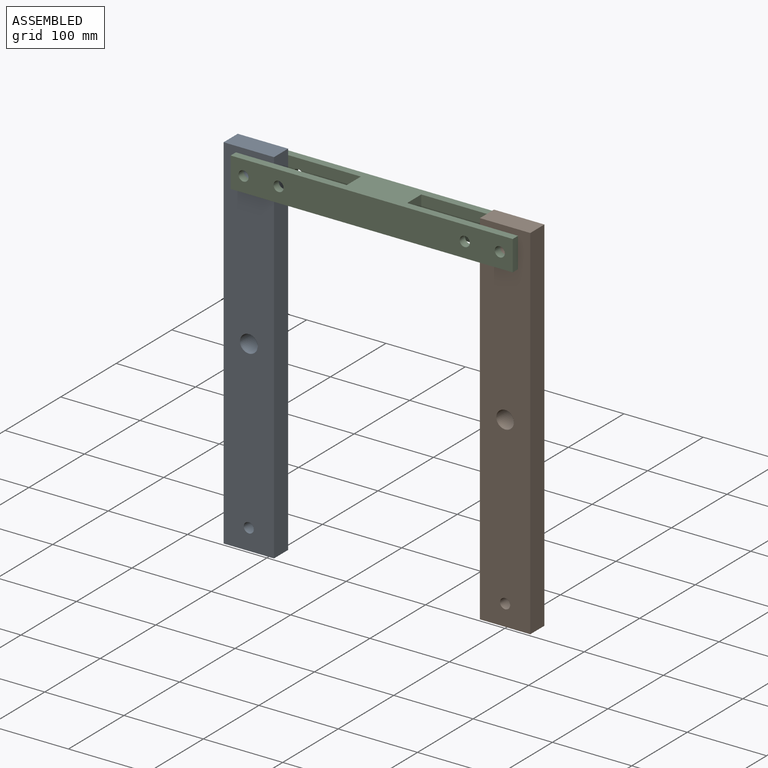
[diagram: assembled view]
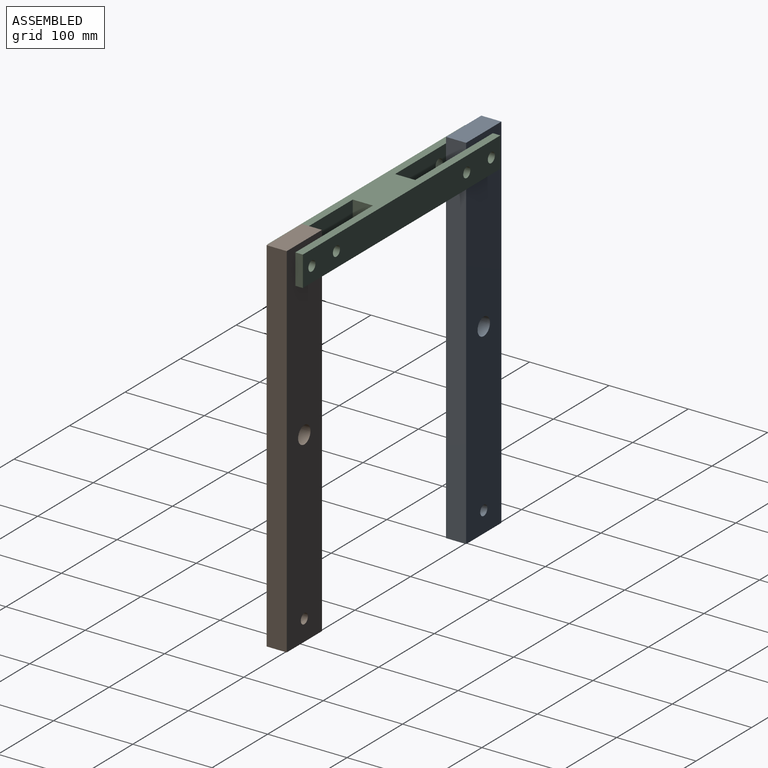
[diagram: assembled view, second angle]
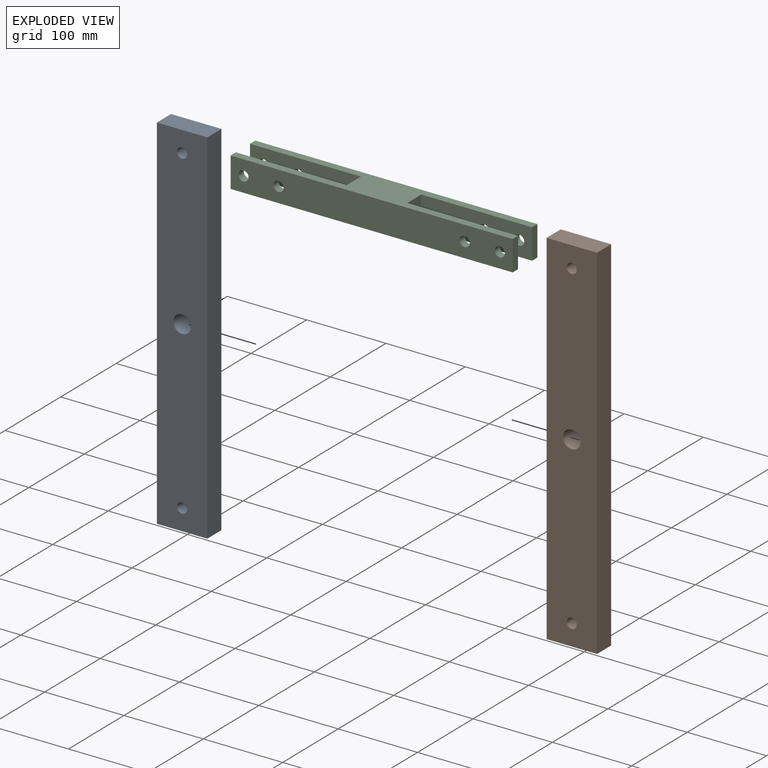
[diagram: exploded view]
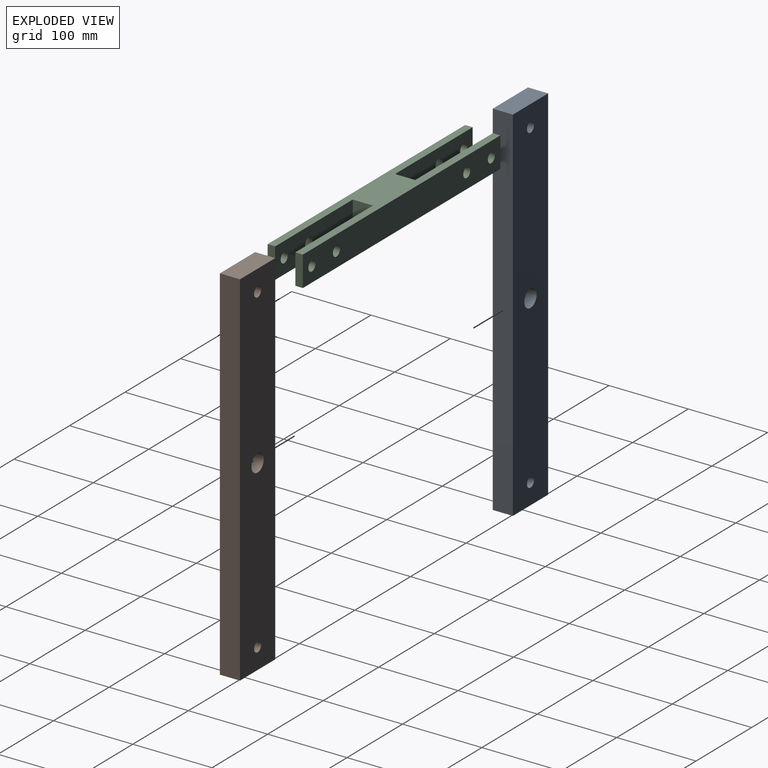
[diagram: exploded view, second angle]
ASSEMBLY  parts=3 mates=2
PART A: 9 faces, bbox 63.5x25.4x457.2 mm
  f0: plane 63.5x25.4mm, normal (0,0,1), area 1612.9mm2, adj f1,f5,f7,f8
  f1: plane 457.2x25.4mm, normal (-1,0,0), area 11612.9mm2, adj f0,f2,f7,f8
  f2: plane 63.5x25.4mm, normal (0,0,-1), area 1612.9mm2, adj f1,f5,f7,f8
  f3: cylinder r=11.11mm len=25.4mm, axis (0,1,0), area 1773.5mm2, adj f7,f8
  f4: cylinder r=6.35mm len=25.4mm, axis (0,1,0), area 1013.4mm2, adj f7,f8
  f5: plane 457.2x25.4mm, normal (1,0,0), area 11612.9mm2, adj f0,f2,f7,f8
  f6: cylinder r=6.35mm len=25.4mm, axis (0,1,0), area 1013.4mm2, adj f7,f8
  f7: plane 457.2x63.5mm, normal (0,-1,0), area 28390.9mm2, adj f0,f1,f2,f3,f4,f5,f6
  f8: plane 457.2x63.5mm, normal (0,1,0), area 28390.9mm2, adj f0,f1,f2,f3,f4,f5,f6
PART B: same geometry as A
PART C: 22 faces, bbox 355.6x44.5x38.1 mm
  f0: plane 38.1x9.53mm, normal (-1,0,0), area 362.9mm2, adj f1,f11,f12,f13
  f1: plane 355.6x38.1mm, normal (0,-1,0), area 13041.7mm2, adj f0,f2,f12,f13,f14,f15,f20,f21
  f2: plane 38.1x9.53mm, normal (1,0,0), area 362.9mm2, adj f1,f3,f12,f13
  f3: plane 139.7x38.1mm, normal (0,1,0), area 5069.2mm2, adj f2,f4,f12,f13,f20,f21
  f4: plane 38.1x25.4mm, normal (1,0,0), area 967.7mm2, adj f3,f5,f12,f13
  f5: plane 139.7x38.1mm, normal (0,-1,0), area 5069.2mm2, adj f4,f6,f12,f13,f18,f19
  f6: plane 38.1x9.53mm, normal (1,0,0), area 362.9mm2, adj f5,f7,f12,f13
  f7: plane 355.6x38.1mm, normal (0,1,0), area 13041.7mm2, adj f6,f8,f12,f13,f16,f17,f18,f19
  f8: plane 38.1x9.53mm, normal (-1,0,0), area 362.9mm2, adj f7,f9,f12,f13
  f9: plane 139.7x38.1mm, normal (0,-1,0), area 5069.2mm2, adj f8,f10,f12,f13,f16,f17
  f10: plane 38.1x25.4mm, normal (-1,0,0), area 967.7mm2, adj f9,f11,f12,f13
  f11: plane 139.7x38.1mm, normal (0,1,0), area 5069.2mm2, adj f0,f10,f12,f13,f14,f15
  f12: plane 355.6x44.45mm, normal (0,0,1), area 8709.7mm2, adj f0,f1,f2,f3,f4,f5,f6,f7
  f13: plane 355.6x44.45mm, normal (0,0,-1), area 8709.7mm2, adj f0,f1,f2,f3,f4,f5,f6,f7
  f14: cylinder r=6.35mm len=12.7mm, axis (0,-1,0), area 380mm2, adj f1,f11
  f15: cylinder r=6.35mm len=12.7mm, axis (0,-1,0), area 380mm2, adj f1,f11
  f16: cylinder r=6.35mm len=12.7mm, axis (0,-1,0), area 380mm2, adj f7,f9
  f17: cylinder r=6.35mm len=12.7mm, axis (0,-1,0), area 380mm2, adj f7,f9
  f18: cylinder r=6.35mm len=12.7mm, axis (0,-1,0), area 380mm2, adj f5,f7
  f19: cylinder r=6.35mm len=12.7mm, axis (0,-1,0), area 380mm2, adj f5,f7
  f20: cylinder r=6.35mm len=12.7mm, axis (0,-1,0), area 380mm2, adj f1,f3
  f21: cylinder r=6.35mm len=12.7mm, axis (0,-1,0), area 380mm2, adj f1,f3
PLACE A t=(-245.61,12.7,-118.9)mm
PLACE B t=(77.48,12.7,-118.9)mm
PLACE C t=(-52.32,-22.22,56.9)mm
MATE revolute A.f4 <-> C.f15  axis (0,-1,0) through (-213.86,-12.7,75.95)mm
MATE revolute C.f18 <-> B.f4  axis (0,-1,0) through (109.23,-22.22,75.95)mm
